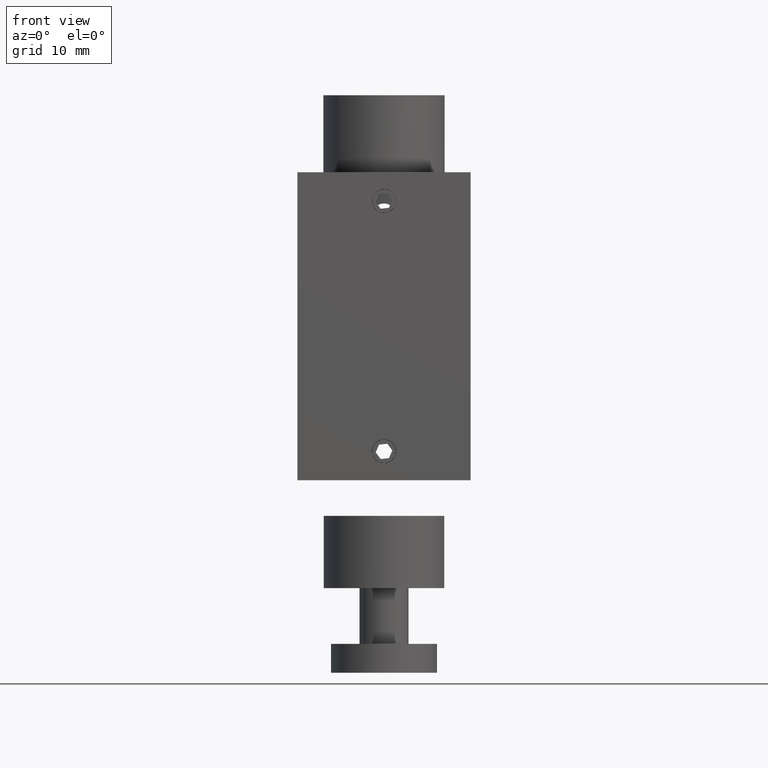
[diagram: clean part render]
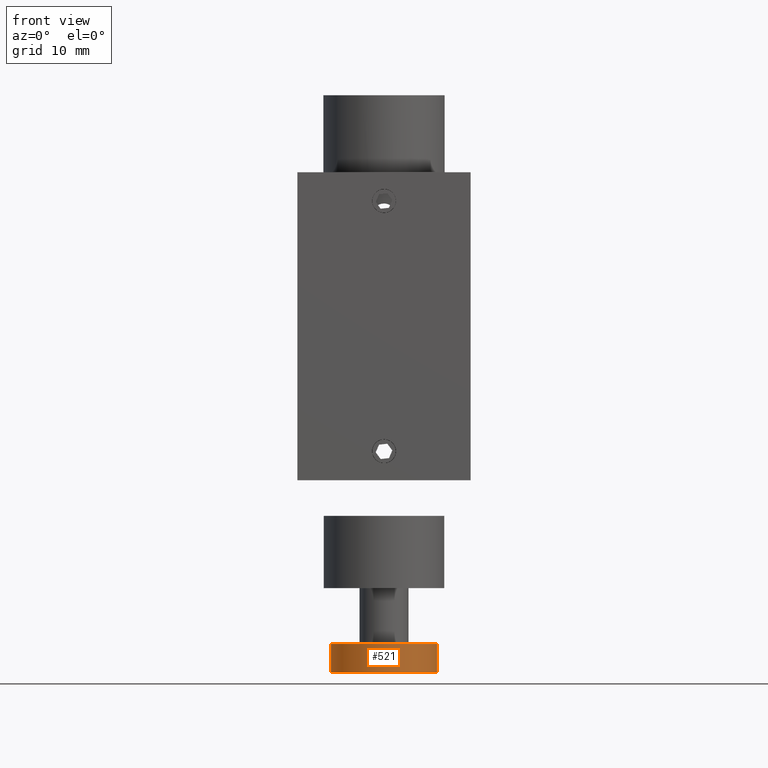
[diagram: same view with one face highlighted and labeled with its STEP entity id]
A machine part, front view. The second image highlights one B-rep face of the part: STEP entity #521.
In plain terms, the highlighted cylindrical surface (partial cylindrical patch) has radius 5.5 mm, axis along (0, 0, -1).
Its self-contained STEP definition (entity closure, byte-faithful):
#521 = ADVANCED_FACE ( 'NONE', ( #3126 ), #3169, .T. ) ;
#522 = EDGE_LOOP ( 'NONE', ( #523, #524, #525, #589 ) ) ;
#523 = ORIENTED_EDGE ( 'NONE', *, *, #552, .F. ) ;
#524 = ORIENTED_EDGE ( 'NONE', *, *, #539, .F. ) ;
#525 = ORIENTED_EDGE ( 'NONE', *, *, #530, .T. ) ;
#528 = VERTEX_POINT ( 'NONE', #3161 ) ;
#530 = EDGE_CURVE ( 'NONE', #550, #528, #3159, .T. ) ;
#534 = EDGE_CURVE ( 'NONE', #528, #6467, #3192, .T. ) ;
#539 = EDGE_CURVE ( 'NONE', #550, #549, #3219, .T. ) ;
#549 = VERTEX_POINT ( 'NONE', #3245 ) ;
#550 = VERTEX_POINT ( 'NONE', #3244 ) ;
#552 = EDGE_CURVE ( 'NONE', #549, #6467, #3242, .T. ) ;
#589 = ORIENTED_EDGE ( 'NONE', *, *, #534, .T. ) ;
#3126 = FACE_OUTER_BOUND ( 'NONE', #522, .T. ) ;
#3156 = DIRECTION ( 'NONE',  ( 0.0000000000000000000, 0.0000000000000000000, -1.000000000000000000 ) ) ;
#3157 = VECTOR ( 'NONE', #3156, 1000.000000000000000 ) ;
#3158 = CARTESIAN_POINT ( 'NONE',  ( -7.348664688427290600, 0.4362017804154412200, -56.99999999998499300 ) ) ;
#3159 = LINE ( 'NONE', #3158, #3157 ) ;
#3161 = CARTESIAN_POINT ( 'NONE',  ( -7.348664688427290600, 0.4362017804154412200, -59.99999999998499300 ) ) ;
#3166 = DIRECTION ( 'NONE',  ( -1.000000000000000000, 0.0000000000000000000, 0.0000000000000000000 ) ) ;
#3167 = DIRECTION ( 'NONE',  ( 0.0000000000000000000, 0.0000000000000000000, -1.000000000000000000 ) ) ;
#3168 = AXIS2_PLACEMENT_3D ( 'NONE', #3171, #3167, #3166 ) ;
#3169 = CYLINDRICAL_SURFACE ( 'NONE', #3168, 5.500000000000000000 ) ;
#3171 = CARTESIAN_POINT ( 'NONE',  ( -1.848664688427290800, 0.4362017804154412200, -56.99999999998499300 ) ) ;
#3188 = DIRECTION ( 'NONE',  ( 1.000000000000000000, 0.0000000000000000000, 0.0000000000000000000 ) ) ;
#3189 = DIRECTION ( 'NONE',  ( 0.0000000000000000000, 0.0000000000000000000, 1.000000000000000000 ) ) ;
#3190 = CARTESIAN_POINT ( 'NONE',  ( -1.848664688427290800, 0.4362017804154412200, -59.99999999998499300 ) ) ;
#3191 = AXIS2_PLACEMENT_3D ( 'NONE', #3190, #3189, #3188 ) ;
#3192 = CIRCLE ( 'NONE', #3191, 5.500000000000000000 ) ;
#3215 = DIRECTION ( 'NONE',  ( 1.000000000000000000, 0.0000000000000000000, 0.0000000000000000000 ) ) ;
#3216 = DIRECTION ( 'NONE',  ( 0.0000000000000000000, 0.0000000000000000000, 1.000000000000000000 ) ) ;
#3217 = CARTESIAN_POINT ( 'NONE',  ( -1.848664688427290800, 0.4362017804154412200, -56.99999999998499300 ) ) ;
#3218 = AXIS2_PLACEMENT_3D ( 'NONE', #3217, #3216, #3215 ) ;
#3219 = CIRCLE ( 'NONE', #3218, 5.500000000000000000 ) ;
#3239 = DIRECTION ( 'NONE',  ( 0.0000000000000000000, 0.0000000000000000000, -1.000000000000000000 ) ) ;
#3240 = VECTOR ( 'NONE', #3239, 1000.000000000000000 ) ;
#3241 = CARTESIAN_POINT ( 'NONE',  ( 3.651335311572709000, 0.4362017804154418900, -56.99999999998499300 ) ) ;
#3242 = LINE ( 'NONE', #3241, #3240 ) ;
#3244 = CARTESIAN_POINT ( 'NONE',  ( -7.348664688427290600, 0.4362017804154412200, -56.99999999998499300 ) ) ;
#3245 = CARTESIAN_POINT ( 'NONE',  ( 3.651335311572709000, 0.4362017804154418900, -56.99999999998499300 ) ) ;
#6415 = CARTESIAN_POINT ( 'NONE',  ( 3.651335311572709000, 0.4362017804154418900, -59.99999999998499300 ) ) ;
#6467 = VERTEX_POINT ( 'NONE', #6415 ) ;